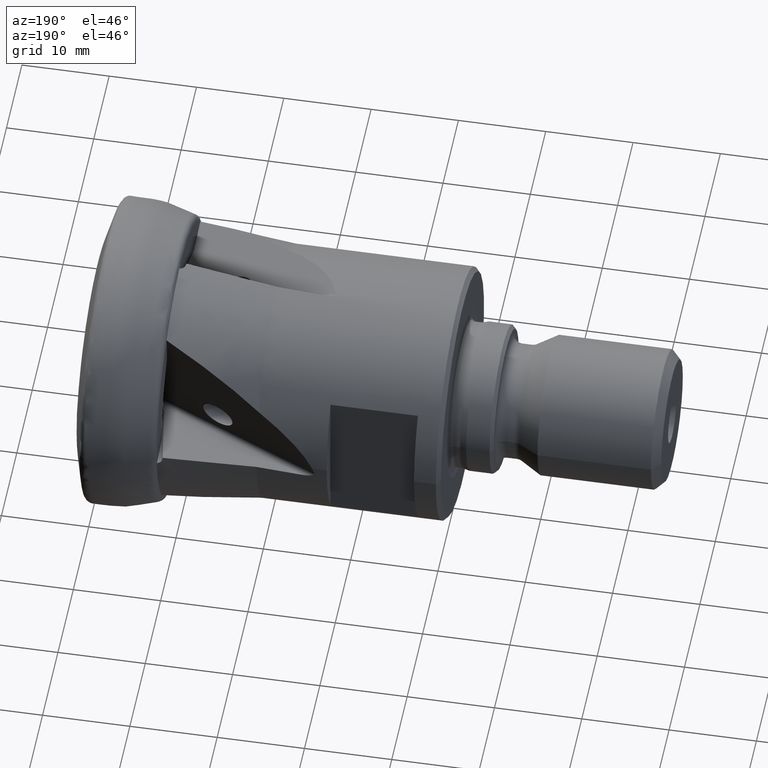
[diagram: clean part render]
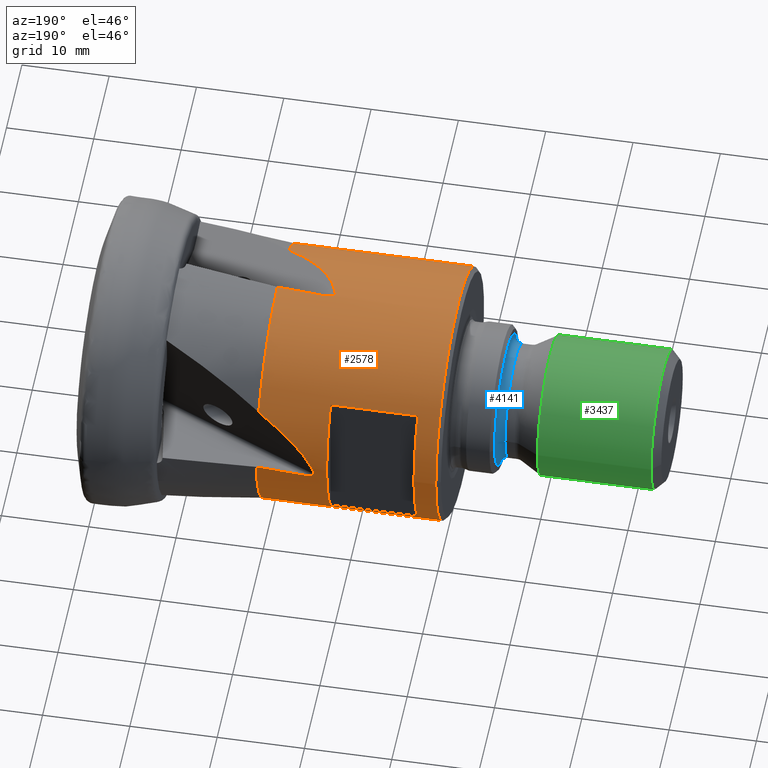
[diagram: same view with three faces highlighted in distinct colors, each labeled with its STEP entity id]
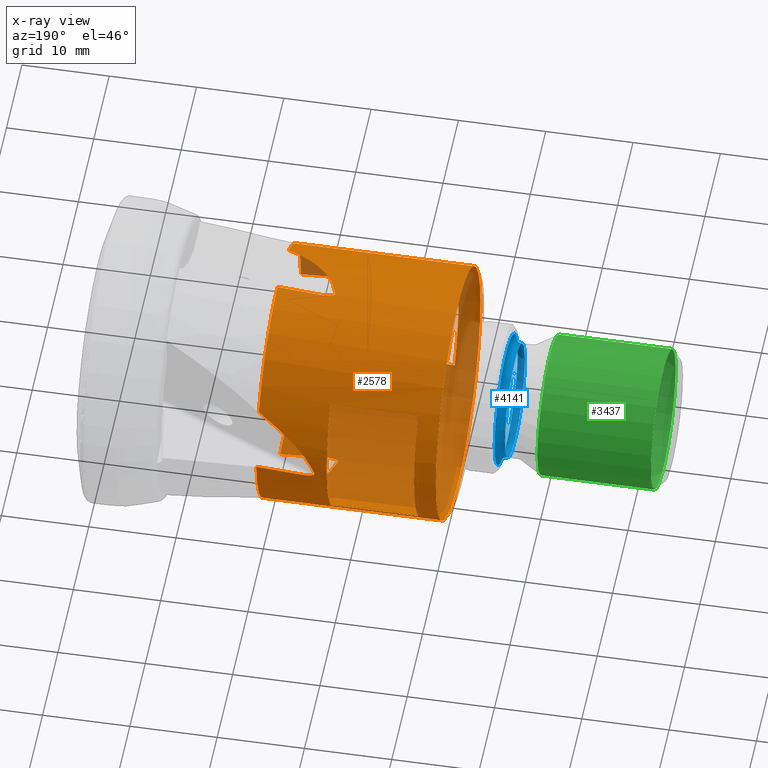
[diagram: x-ray of the same camera — body ghosted, the three highlighted faces saturated]
A machine part, auxiliary view with three faces highlighted in distinct colors.
The next image is the same camera in x-ray (body ghosted, the three faces saturated) — at least one of them is partly hidden behind the body in this view.
Their STEP definitions:

[orange] entity #2578 — the highlighted cylindrical surface (bore or boss wall) has radius 14.5 mm, axis along (1, 0, -0).
#6 = CARTESIAN_POINT ( 'NONE',  ( -21.72107227550517200, 14.46614324319610400, -0.9976155492181845200 ) ) ;
#14 = CARTESIAN_POINT ( 'NONE',  ( -20.00000000000000000, 14.47343786294145400, -0.8772664518677688600 ) ) ;
#40 = CARTESIAN_POINT ( 'NONE',  ( -25.44057468542925400, 14.44536468410429500, -1.257708494760338700 ) ) ;
#73 = CARTESIAN_POINT ( 'NONE',  ( -25.15864453342187800, 1.237994018039552300, 14.44705405303442100 ) ) ;
#77 = EDGE_CURVE ( 'NONE', #5380, #2961, #1214, .T. ) ;
#82 = CARTESIAN_POINT ( 'NONE',  ( -25.72042216559400900, 14.44624959042820900, -1.248454732640538400 ) ) ;
#152 = CARTESIAN_POINT ( 'NONE',  ( -25.15864453342188200, 14.44705405303440700, -1.237994018039706700 ) ) ;
#161 = VERTEX_POINT ( 'NONE', #5431 ) ;
#164 = CARTESIAN_POINT ( 'NONE',  ( -26.64211981763012800, -0.7876635784352925600, -14.47863267572594600 ) ) ;
#167 = CARTESIAN_POINT ( 'NONE',  ( -20.00000000000000000, 12.97221407561951300, 6.478554003502551100 ) ) ;
#179 = CARTESIAN_POINT ( 'NONE',  ( -26.13554187559321600, 14.45275731454725200, -1.169828029626882600 ) ) ;
#182 = AXIS2_PLACEMENT_3D ( 'NONE', #519, #4817, #4469 ) ;
#263 = CARTESIAN_POINT ( 'NONE',  ( -38.04999999999999000, 11.99999999999999500, 8.139410298049853100 ) ) ;
#269 = ORIENTED_EDGE ( 'NONE', *, *, #790, .T. ) ;
#272 = CARTESIAN_POINT ( 'NONE',  ( -25.15864453342188200, 14.44705405303440700, -1.237994018039706700 ) ) ;
#302 = ORIENTED_EDGE ( 'NONE', *, *, #4893, .F. ) ;
#331 = CARTESIAN_POINT ( 'NONE',  ( -28.04999999999999000, 11.99999999999999800, -8.139410298049838800 ) ) ;
#357 = CYLINDRICAL_SURFACE ( 'NONE', #4299, 14.50000000000000000 ) ;
#384 = CARTESIAN_POINT ( 'NONE',  ( -25.15864453342187400, -14.44705405303441900, 1.237994018039605800 ) ) ;
#387 =( BOUNDED_CURVE ( )  B_SPLINE_CURVE ( 3, ( #1149, #3770, #3801, #3696 ),
 .UNSPECIFIED., .F., .T. ) 
 B_SPLINE_CURVE_WITH_KNOTS ( ( 4, 4 ),
 ( 3.249855182283115900, 3.764978152329276500 ),
 .UNSPECIFIED. ) 
 CURVE ( )  GEOMETRIC_REPRESENTATION_ITEM ( )  RATIONAL_B_SPLINE_CURVE ( ( 1.000000000000000000, 0.9780093326944202500, 0.9780093326944202500, 1.000000000000000000 ) ) 
 REPRESENTATION_ITEM ( '' )  );
#397 = CARTESIAN_POINT ( 'NONE',  ( -26.27381010138614700, 14.45578271869804100, -1.133241217150249700 ) ) ;
#401 = CARTESIAN_POINT ( 'NONE',  ( -19.99999999999999600, -2.449293598294702600E-015, 0.0000000000000000000 ) ) ;
#435 = CARTESIAN_POINT ( 'NONE',  ( -26.46408068741793700, 14.46269285974371500, -1.039945989622723000 ) ) ;
#444 = DIRECTION ( 'NONE',  ( -1.000000000000000000, -1.224646799147351500E-016, 0.0000000000000000000 ) ) ;
#464 = CARTESIAN_POINT ( 'NONE',  ( -19.99999999999999600, -0.8772664518676196500, -14.47343786294146600 ) ) ;
#471 = EDGE_CURVE ( 'NONE', #657, #5033, #775, .T. ) ;
#470 = CARTESIAN_POINT ( 'NONE',  ( -26.52599383262208800, 14.46542416657723100, -1.002150513273226000 ) ) ;
#474 = B_SPLINE_CURVE_WITH_KNOTS ( 'NONE', 3,
 ( #3706, #3974, #3619, #3597, #3578, #3490, #3239, #3194, #3152, #615, #668, #73 ),
 .UNSPECIFIED., .F., .F.,
 ( 4, 2, 2, 2, 2, 4 ),
 ( 7.589415207398531000E-019, 0.0001070338114284563700, 0.0002140676228569119800, 0.0004281352457138229900, 0.0008562704914276544400, 0.001712540982855317300 ),
 .UNSPECIFIED. ) ;
#476 = ORIENTED_EDGE ( 'NONE', *, *, #2336, .T. ) ;
#492 = EDGE_CURVE ( 'NONE', #549, #4774, #5114, .T. ) ;
#496 = CARTESIAN_POINT ( 'NONE',  ( -26.63265429186544600, -14.48044465662392000, 0.7528097677711931300 ) ) ;
#519 = CARTESIAN_POINT ( 'NONE',  ( -19.99999999999999600, -2.449293598294702600E-015, 0.0000000000000000000 ) ) ;
#522 = CARTESIAN_POINT ( 'NONE',  ( -26.13554187559321200, -1.169828029626734900, -14.45275731454727400 ) ) ;
#525 = CARTESIAN_POINT ( 'NONE',  ( -26.63265429186544600, -14.48044465662392000, 0.7528097677711931300 ) ) ;
#528 = CARTESIAN_POINT ( 'NONE',  ( -26.59866834802014400, 14.47062259926868500, -0.9229204094058299800 ) ) ;
#540 = VERTEX_POINT ( 'NONE', #496 ) ;
#544 = CARTESIAN_POINT ( 'NONE',  ( -26.59866834802014400, -14.47062259926870100, 0.9229204094057333900 ) ) ;
#548 = EDGE_CURVE ( 'NONE', #3715, #705, #3767, .T. ) ;
#549 = VERTEX_POINT ( 'NONE', #4199 ) ;
#566 = CARTESIAN_POINT ( 'NONE',  ( -26.61896739219593400, 14.47254466967634900, -0.8925292235482750200 ) ) ;
#586 = CARTESIAN_POINT ( 'NONE',  ( -28.04999999999999000, -3.435134271608319600E-015, 0.0000000000000000000 ) ) ;
#603 = CARTESIAN_POINT ( 'NONE',  ( -26.64123357561798100, 14.47657388204483400, -0.8246006720601546400 ) ) ;
#615 = CARTESIAN_POINT ( 'NONE',  ( -25.72042216559401600, 1.248454732640384300, 14.44624959042823200 ) ) ;
#617 = AXIS2_PLACEMENT_3D ( 'NONE', #3991, #2445, #2941 ) ;
#631 = FACE_BOUND ( 'NONE', #1065, .T. ) ;
#657 = VERTEX_POINT ( 'NONE', #4397 ) ;
#668 = CARTESIAN_POINT ( 'NONE',  ( -25.44057468542925800, 1.257708494760186200, 14.44536468410431400 ) ) ;
#670 = CIRCLE ( 'NONE', #1949, 14.50000000000000000 ) ;
#689 = CARTESIAN_POINT ( 'NONE',  ( -25.15864453342187400, -14.44705405303441900, 1.237994018039605800 ) ) ;
#705 = VERTEX_POINT ( 'NONE', #2226 ) ;
#722 = DIRECTION ( 'NONE',  ( 0.0000000000000000000, 1.000000000000000000, 0.0000000000000000000 ) ) ;
#725 = ORIENTED_EDGE ( 'NONE', *, *, #2414, .F. ) ;
#728 = DIRECTION ( 'NONE',  ( 1.000000000000000000, 1.224646799147351500E-016, -0.0000000000000000000 ) ) ;
#738 = CARTESIAN_POINT ( 'NONE',  ( -40.54999999999999700, -4.965942770542509800E-015, 0.0000000000000000000 ) ) ;
#739 = CARTESIAN_POINT ( 'NONE',  ( -26.64211981763012100, 14.47863267572593800, -0.7876635784354403300 ) ) ;
#775 = CIRCLE ( 'NONE', #2878, 14.50000000000000000 ) ;
#785 = CARTESIAN_POINT ( 'NONE',  ( -23.68923051496132700, 14.09711010586117100, 4.226139018735862500 ) ) ;
#786 = VERTEX_POINT ( 'NONE', #167 ) ;
#790 = EDGE_CURVE ( 'NONE', #3497, #3497, #1843, .T. ) ;
#800 = CARTESIAN_POINT ( 'NONE',  ( -25.94982731096954600, 1.761485042701039600, -14.61115788658775500 ) ) ;
#804 = VERTEX_POINT ( 'NONE', #331 ) ;
#821 = EDGE_CURVE ( 'NONE', #4623, #3715, #2864, .T. ) ;
#838 = CARTESIAN_POINT ( 'NONE',  ( -26.63265429186544600, 14.48044465662391100, -0.7528097677712954900 ) ) ;
#858 = CARTESIAN_POINT ( 'NONE',  ( -26.61896739219593400, -14.47254466967635300, 0.8925292235481771000 ) ) ;
#865 = DIRECTION ( 'NONE',  ( 1.000000000000000000, 1.224646799147351500E-016, -0.0000000000000000000 ) ) ;
#871 = CARTESIAN_POINT ( 'NONE',  ( -26.61896739219593000, -0.8925292235481266900, -14.47254466967635400 ) ) ;
#878 = VECTOR ( 'NONE', #5449, 1000.000000000000000 ) ;
#885 = VERTEX_POINT ( 'NONE', #4360 ) ;
#890 = DIRECTION ( 'NONE',  ( -2.392722035830079000E-016, 1.000000000000000000, 0.0000000000000000000 ) ) ;
#927 = VERTEX_POINT ( 'NONE', #4276 ) ;
#1013 = VECTOR ( 'NONE', #444, 1000.000000000000000 ) ;
#1043 = CARTESIAN_POINT ( 'NONE',  ( -19.99999999999999600, 6.478554003502683400, -12.97221407561944800 ) ) ;
#1065 = EDGE_LOOP ( 'NONE', ( #4458, #725, #5161, #1744 ) ) ;
#1119 = EDGE_LOOP ( 'NONE', ( #5394, #3859, #2646, #2820 ) ) ;
#1129 = EDGE_CURVE ( 'NONE', #161, #549, #387, .T. ) ;
#1149 = CARTESIAN_POINT ( 'NONE',  ( -26.63265429186544600, 0.7528097677711408400, 14.48044465662392200 ) ) ;
#1164 = CARTESIAN_POINT ( 'NONE',  ( -4.163336342344339400E-015, 12.00000000000000900, -8.139410298049838800 ) ) ;
#1172 = CARTESIAN_POINT ( 'NONE',  ( -26.63265429186544600, -14.48044465662392000, 0.7528097677711931300 ) ) ;
#1204 = VECTOR ( 'NONE', #5496, 1000.000000000000000 ) ;
#1214 =( BOUNDED_CURVE ( )  B_SPLINE_CURVE ( 3, ( #14, #6, #1521, #152 ),
 .UNSPECIFIED., .F., .T. ) 
 B_SPLINE_CURVE_WITH_KNOTS ( ( 4, 4 ),
 ( 1.631334431933151500, 1.656279295382393000 ),
 .UNSPECIFIED. ) 
 CURVE ( )  GEOMETRIC_REPRESENTATION_ITEM ( )  RATIONAL_B_SPLINE_CURVE ( ( 1.000000000000000000, 0.9999481468211600700, 0.9999481468211600700, 1.000000000000000000 ) ) 
 REPRESENTATION_ITEM ( '' )  );
#1217 = DIRECTION ( 'NONE',  ( 1.000000000000000000, -0.0000000000000000000, -0.0000000000000000000 ) ) ;
#1260 = CARTESIAN_POINT ( 'NONE',  ( -26.64123357561797400, -14.47657388204485000, 0.8246006720600549400 ) ) ;
#1289 = AXIS2_PLACEMENT_3D ( 'NONE', #2922, #1217, #1603 ) ;
#1319 = CARTESIAN_POINT ( 'NONE',  ( -20.00000000000000000, 12.97221407561951300, 6.478554003502551100 ) ) ;
#1321 = CARTESIAN_POINT ( 'NONE',  ( -21.72107227550516800, -14.46614324319612000, 0.9976155492180833800 ) ) ;
#1325 = ORIENTED_EDGE ( 'NONE', *, *, #2707, .F. ) ;
#1384 = CARTESIAN_POINT ( 'NONE',  ( -25.72042216559401200, -14.44624959042823600, 1.248454732640436300 ) ) ;
#1521 = CARTESIAN_POINT ( 'NONE',  ( -23.44070962197528400, 14.45734818384197100, -1.117864306555813400 ) ) ;
#1524 =( BOUNDED_CURVE ( )  B_SPLINE_CURVE ( 3, ( #4732, #800, #4213, #1043 ),
 .UNSPECIFIED., .F., .T. ) 
 B_SPLINE_CURVE_WITH_KNOTS ( ( 4, 4 ),
 ( 3.249855182283115900, 3.764978152329276900 ),
 .UNSPECIFIED. ) 
 CURVE ( )  GEOMETRIC_REPRESENTATION_ITEM ( )  RATIONAL_B_SPLINE_CURVE ( ( 1.000000000000000000, 0.9780093326944202500, 0.9780093326944202500, 1.000000000000000000 ) ) 
 REPRESENTATION_ITEM ( '' )  );
#1553 = VERTEX_POINT ( 'NONE', #1617 ) ;
#1596 = CARTESIAN_POINT ( 'NONE',  ( -26.27381010138613600, -1.133241217150101600, -14.45578271869805300 ) ) ;
#1603 = DIRECTION ( 'NONE',  ( 0.0000000000000000000, 3.552713678800500900E-015, 1.000000000000000000 ) ) ;
#1617 = CARTESIAN_POINT ( 'NONE',  ( -38.04999999999999000, 11.99999999999999500, -8.139410298049853100 ) ) ;
#1628 = CARTESIAN_POINT ( 'NONE',  ( -28.04999999999998600, -3.435134271608319200E-015, 0.0000000000000000000 ) ) ;
#1633 = FACE_OUTER_BOUND ( 'NONE', #2141, .T. ) ;
#1636 = DIRECTION ( 'NONE',  ( -1.000000000000000000, 0.0000000000000000000, -0.0000000000000000000 ) ) ;
#1643 = CARTESIAN_POINT ( 'NONE',  ( 0.0000000000000000000, 0.0000000000000000000, 0.0000000000000000000 ) ) ;
#1646 = ORIENTED_EDGE ( 'NONE', *, *, #3370, .F. ) ;
#1650 = ORIENTED_EDGE ( 'NONE', *, *, #3607, .F. ) ;
#1681 = VERTEX_POINT ( 'NONE', #2261 ) ;
#1744 = ORIENTED_EDGE ( 'NONE', *, *, #5502, .F. ) ;
#1754 = DIRECTION ( 'NONE',  ( 1.000000000000000000, 1.224646799147351500E-016, -0.0000000000000000000 ) ) ;
#1775 = FACE_BOUND ( 'NONE', #1119, .T. ) ;
#1843 = CIRCLE ( 'NONE', #3028, 14.50000000000000000 ) ;
#1855 = DIRECTION ( 'NONE',  ( 0.0000000000000000000, 0.0000000000000000000, -1.000000000000000000 ) ) ;
#1871 = ORIENTED_EDGE ( 'NONE', *, *, #821, .F. ) ;
#1949 = AXIS2_PLACEMENT_3D ( 'NONE', #401, #1754, #2183 ) ;
#1952 = CARTESIAN_POINT ( 'NONE',  ( -26.63265429186545000, -0.7528097677711473900, -14.48044465662392400 ) ) ;
#1964 = CIRCLE ( 'NONE', #1289, 14.50000000000000000 ) ;
#2033 = VERTEX_POINT ( 'NONE', #4832 ) ;
#2059 = DIRECTION ( 'NONE',  ( 1.000000000000000000, 1.387778780781447100E-015, 0.0000000000000000000 ) ) ;
#2097 = CARTESIAN_POINT ( 'NONE',  ( -25.15864453342187800, 1.237994018039552300, 14.44705405303442100 ) ) ;
#2118 = CIRCLE ( 'NONE', #3965, 14.50000000000000000 ) ;
#2141 = EDGE_LOOP ( 'NONE', ( #302, #2814, #5035, #1646, #1325, #5086, #2404, #1871, #3620, #476, #1650, #5203, #2756, #5179, #2927, #4999 ) ) ;
#2152 = VERTEX_POINT ( 'NONE', #3514 ) ;
#2170 = CARTESIAN_POINT ( 'NONE',  ( -26.27381010138614000, -14.45578271869805700, 1.133241217150150200 ) ) ;
#2183 = DIRECTION ( 'NONE',  ( -2.392722035830079000E-016, 1.000000000000000000, 0.0000000000000000000 ) ) ;
#2226 = CARTESIAN_POINT ( 'NONE',  ( -25.15864453342187800, -1.237994018039558300, -14.44705405303442100 ) ) ;
#2234 =( BOUNDED_CURVE ( )  B_SPLINE_CURVE ( 3, ( #5308, #5430, #785, #1319 ),
 .UNSPECIFIED., .F., .T. ) 
 B_SPLINE_CURVE_WITH_KNOTS ( ( 4, 4 ),
 ( 3.249855182283115900, 3.764978152329276500 ),
 .UNSPECIFIED. ) 
 CURVE ( )  GEOMETRIC_REPRESENTATION_ITEM ( )  RATIONAL_B_SPLINE_CURVE ( ( 1.000000000000000000, 0.9780093326944202500, 0.9780093326944202500, 1.000000000000000000 ) ) 
 REPRESENTATION_ITEM ( '' )  );
#2261 = CARTESIAN_POINT ( 'NONE',  ( -38.04999999999999000, -12.00000000000000500, -8.139410298049844200 ) ) ;
#2276 = B_SPLINE_CURVE_WITH_KNOTS ( 'NONE', 3,
 ( #525, #4778, #1260, #858, #544, #4818, #5177, #2170, #5196, #1384, #2718, #384 ),
 .UNSPECIFIED., .F., .F.,
 ( 4, 2, 2, 2, 2, 4 ),
 ( 2.059984127722458400E-018, 0.0001070338114284623600, 0.0002140676228569226600, 0.0004281352457138426700, 0.0008562704914276732000, 0.001712540982855334300 ),
 .UNSPECIFIED. ) ;
#2336 = EDGE_CURVE ( 'NONE', #540, #2152, #2276, .T. ) ;
#2369 = CARTESIAN_POINT ( 'NONE',  ( -19.99999999999999600, -2.449293598294702600E-015, 0.0000000000000000000 ) ) ;
#2404 = ORIENTED_EDGE ( 'NONE', *, *, #548, .F. ) ;
#2414 = EDGE_CURVE ( 'NONE', #5197, #3391, #3234, .T. ) ;
#2445 = DIRECTION ( 'NONE',  ( 1.000000000000000000, 1.224646799147351500E-016, -0.0000000000000000000 ) ) ;
#2534 = CARTESIAN_POINT ( 'NONE',  ( -25.15864453342187800, -1.237994018039558300, -14.44705405303442100 ) ) ;
#2578 = ADVANCED_FACE ( 'NONE', ( #1633, #1775, #631, #4294 ), #357, .T. ) ;
#2582 = CARTESIAN_POINT ( 'NONE',  ( -40.54999999999999700, 14.49999999999999500, 0.0000000000000000000 ) ) ;
#2646 = ORIENTED_EDGE ( 'NONE', *, *, #471, .F. ) ;
#2707 = EDGE_CURVE ( 'NONE', #4115, #4011, #1524, .T. ) ;
#2715 = CARTESIAN_POINT ( 'NONE',  ( -20.00000000000000000, -12.97221407561947300, -6.478554003502642500 ) ) ;
#2718 = CARTESIAN_POINT ( 'NONE',  ( -25.44057468542925100, -14.44536468410431100, 1.257708494760241900 ) ) ;
#2739 = DIRECTION ( 'NONE',  ( 0.0000000000000000000, 0.0000000000000000000, -1.000000000000000000 ) ) ;
#2756 = ORIENTED_EDGE ( 'NONE', *, *, #1129, .F. ) ;
#2763 = VECTOR ( 'NONE', #5442, 1000.000000000000000 ) ;
#2814 = ORIENTED_EDGE ( 'NONE', *, *, #4426, .T. ) ;
#2820 = ORIENTED_EDGE ( 'NONE', *, *, #4026, .F. ) ;
#2825 = CIRCLE ( 'NONE', #182, 14.50000000000000000 ) ;
#2843 =( BOUNDED_CURVE ( )  B_SPLINE_CURVE ( 3, ( #5497, #4581, #4030, #3914 ),
 .UNSPECIFIED., .F., .T. ) 
 B_SPLINE_CURVE_WITH_KNOTS ( ( 4, 4 ),
 ( 1.631334431933151500, 1.656279295382393000 ),
 .UNSPECIFIED. ) 
 CURVE ( )  GEOMETRIC_REPRESENTATION_ITEM ( )  RATIONAL_B_SPLINE_CURVE ( ( 1.000000000000000000, 0.9999481468211600700, 0.9999481468211600700, 1.000000000000000000 ) ) 
 REPRESENTATION_ITEM ( '' )  );
#2864 = CIRCLE ( 'NONE', #4669, 14.50000000000000000 ) ;
#2878 = AXIS2_PLACEMENT_3D ( 'NONE', #1628, #1636, #1855 ) ;
#2922 = CARTESIAN_POINT ( 'NONE',  ( -38.04999999999999000, -4.659781070755671100E-015, 0.0000000000000000000 ) ) ;
#2927 = ORIENTED_EDGE ( 'NONE', *, *, #5027, .F. ) ;
#2941 = DIRECTION ( 'NONE',  ( -2.392722035830079000E-016, 1.000000000000000000, 0.0000000000000000000 ) ) ;
#2961 = VERTEX_POINT ( 'NONE', #3166 ) ;
#2985 = EDGE_CURVE ( 'NONE', #4115, #705, #3937, .T. ) ;
#3028 = AXIS2_PLACEMENT_3D ( 'NONE', #738, #728, #722 ) ;
#3075 = CARTESIAN_POINT ( 'NONE',  ( 0.0000000000000000000, -12.00000000000000500, -8.139410298049844200 ) ) ;
#3131 = EDGE_CURVE ( 'NONE', #3391, #804, #2118, .T. ) ;
#3152 = CARTESIAN_POINT ( 'NONE',  ( -26.13554187559319800, 1.169828029626727400, 14.45275731454726500 ) ) ;
#3166 = CARTESIAN_POINT ( 'NONE',  ( -25.15864453342188200, 14.44705405303440700, -1.237994018039706700 ) ) ;
#3194 = CARTESIAN_POINT ( 'NONE',  ( -26.27381010138613600, 1.133241217150092500, 14.45578271869805500 ) ) ;
#3202 = CARTESIAN_POINT ( 'NONE',  ( -26.64123357561796700, -0.8246006720600048700, -14.47657388204485200 ) ) ;
#3210 = EDGE_CURVE ( 'NONE', #1553, #5197, #1964, .T. ) ;
#3234 = LINE ( 'NONE', #4037, #878 ) ;
#3239 = CARTESIAN_POINT ( 'NONE',  ( -26.46408068741794000, 1.039945989622565100, 14.46269285974373100 ) ) ;
#3356 = CARTESIAN_POINT ( 'NONE',  ( -19.99999999999999600, 6.478554003502683400, -12.97221407561944800 ) ) ;
#3366 = DIRECTION ( 'NONE',  ( -1.224646799147351700E-016, 1.000000000000000000, 0.0000000000000000000 ) ) ;
#3370 = EDGE_CURVE ( 'NONE', #4011, #5380, #670, .T. ) ;
#3391 = VERTEX_POINT ( 'NONE', #4671 ) ;
#3406 = EDGE_CURVE ( 'NONE', #540, #4623, #5172, .T. ) ;
#3479 = CARTESIAN_POINT ( 'NONE',  ( -19.99999999999999300, -14.47343786294146500, 0.8772664518676676100 ) ) ;
#3490 = CARTESIAN_POINT ( 'NONE',  ( -26.52599383262208100, 1.002150513273071900, 14.46542416657724700 ) ) ;
#3497 = VERTEX_POINT ( 'NONE', #2582 ) ;
#3514 = CARTESIAN_POINT ( 'NONE',  ( -25.15864453342187400, -14.44705405303441900, 1.237994018039605800 ) ) ;
#3537 = EDGE_CURVE ( 'NONE', #885, #1681, #3633, .T. ) ;
#3578 = CARTESIAN_POINT ( 'NONE',  ( -26.59866834802014100, 0.9229204094056774300, 14.47062259926869900 ) ) ;
#3581 = VERTEX_POINT ( 'NONE', #2097 ) ;
#3597 = CARTESIAN_POINT ( 'NONE',  ( -26.61896739219592300, 0.8925292235481188100, 14.47254466967635600 ) ) ;
#3607 = EDGE_CURVE ( 'NONE', #4774, #2152, #5480, .T. ) ;
#3619 = CARTESIAN_POINT ( 'NONE',  ( -26.64123357561797100, 0.8246006720599971000, 14.47657388204485000 ) ) ;
#3620 = ORIENTED_EDGE ( 'NONE', *, *, #3406, .F. ) ;
#3633 = CIRCLE ( 'NONE', #3791, 14.50000000000000000 ) ;
#3639 = CARTESIAN_POINT ( 'NONE',  ( -19.99999999999999300, -14.47343786294146500, 0.8772664518676676100 ) ) ;
#3696 = CARTESIAN_POINT ( 'NONE',  ( -20.00000000000000000, -6.478554003502689600, 12.97221407561944800 ) ) ;
#3706 = CARTESIAN_POINT ( 'NONE',  ( -26.63265429186544600, 0.7528097677711408400, 14.48044465662392200 ) ) ;
#3715 = VERTEX_POINT ( 'NONE', #464 ) ;
#3761 = DIRECTION ( 'NONE',  ( -1.000000000000000000, -0.0000000000000000000, -0.0000000000000000000 ) ) ;
#3767 =( BOUNDED_CURVE ( )  B_SPLINE_CURVE ( 3, ( #5202, #4904, #3922, #5171 ),
 .UNSPECIFIED., .F., .T. ) 
 B_SPLINE_CURVE_WITH_KNOTS ( ( 4, 4 ),
 ( 1.631334431933151500, 1.656279295382393000 ),
 .UNSPECIFIED. ) 
 CURVE ( )  GEOMETRIC_REPRESENTATION_ITEM ( )  RATIONAL_B_SPLINE_CURVE ( ( 1.000000000000000000, 0.9999481468211600700, 0.9999481468211600700, 1.000000000000000000 ) ) 
 REPRESENTATION_ITEM ( '' )  );
#3770 = CARTESIAN_POINT ( 'NONE',  ( -25.94982731096955000, -1.761485042701043300, 14.61115788658775100 ) ) ;
#3791 = AXIS2_PLACEMENT_3D ( 'NONE', #4253, #2059, #4993 ) ;
#3801 = CARTESIAN_POINT ( 'NONE',  ( -23.68923051496132700, -4.226139018736011700, 14.09711010586113000 ) ) ;
#3859 = ORIENTED_EDGE ( 'NONE', *, *, #5408, .F. ) ;
#3895 = CARTESIAN_POINT ( 'NONE',  ( -20.00000000000000000, -12.97221407561947300, -6.478554003502642500 ) ) ;
#3914 = CARTESIAN_POINT ( 'NONE',  ( -25.15864453342187800, 1.237994018039552300, 14.44705405303442100 ) ) ;
#3915 = CARTESIAN_POINT ( 'NONE',  ( -20.00000000000000000, 14.47343786294145400, -0.8772664518677688600 ) ) ;
#3922 = CARTESIAN_POINT ( 'NONE',  ( -23.44070962197528000, -1.117864306555664600, -14.45734818384198700 ) ) ;
#3937 = B_SPLINE_CURVE_WITH_KNOTS ( 'NONE', 3,
 ( #5607, #164, #3202, #871, #4972, #4880, #4769, #1596, #522, #4601, #5560, #2534 ),
 .UNSPECIFIED., .F., .F.,
 ( 4, 2, 2, 2, 2, 4 ),
 ( 8.673617379884035500E-019, 0.0001070338114284611800, 0.0002140676228569215000, 0.0004281352457138421300, 0.0008562704914276735200, 0.001712540982855336200 ),
 .UNSPECIFIED. ) ;
#3949 = LINE ( 'NONE', #3075, #2763 ) ;
#3965 = AXIS2_PLACEMENT_3D ( 'NONE', #586, #3761, #2739 ) ;
#3974 = CARTESIAN_POINT ( 'NONE',  ( -26.64211981763012500, 0.7876635784352854500, 14.47863267572595100 ) ) ;
#3991 = CARTESIAN_POINT ( 'NONE',  ( -19.99999999999999600, -2.449293598294702600E-015, 0.0000000000000000000 ) ) ;
#4011 = VERTEX_POINT ( 'NONE', #3356 ) ;
#4026 = EDGE_CURVE ( 'NONE', #1681, #657, #3949, .T. ) ;
#4030 = CARTESIAN_POINT ( 'NONE',  ( -23.44070962197528000, 1.117864306555658800, 14.45734818384198700 ) ) ;
#4037 = CARTESIAN_POINT ( 'NONE',  ( -4.163336342344339400E-015, 12.00000000000000900, 8.139410298049838800 ) ) ;
#4115 = VERTEX_POINT ( 'NONE', #1952 ) ;
#4156 = LINE ( 'NONE', #1164, #1204 ) ;
#4199 = CARTESIAN_POINT ( 'NONE',  ( -20.00000000000000000, -6.478554003502689600, 12.97221407561944800 ) ) ;
#4213 = CARTESIAN_POINT ( 'NONE',  ( -23.68923051496132000, 4.226139018736011700, -14.09711010586113200 ) ) ;
#4253 = CARTESIAN_POINT ( 'NONE',  ( -38.05000000000000400, -4.659781070755672700E-015, 0.0000000000000000000 ) ) ;
#4276 = CARTESIAN_POINT ( 'NONE',  ( -26.63265429186544600, 14.48044465662391100, -0.7528097677712954900 ) ) ;
#4294 = FACE_OUTER_BOUND ( 'NONE', #4464, .T. ) ;
#4299 = AXIS2_PLACEMENT_3D ( 'NONE', #1643, #5083, #3366 ) ;
#4305 = LINE ( 'NONE', #4802, #1013 ) ;
#4360 = CARTESIAN_POINT ( 'NONE',  ( -38.04999999999999000, -12.00000000000000500, 8.139410298049844200 ) ) ;
#4397 = CARTESIAN_POINT ( 'NONE',  ( -28.04999999999998600, -12.00000000000000500, -8.139410298049849500 ) ) ;
#4409 = B_SPLINE_CURVE_WITH_KNOTS ( 'NONE', 3,
 ( #838, #739, #603, #566, #528, #470, #435, #397, #179, #82, #40, #272 ),
 .UNSPECIFIED., .F., .F.,
 ( 4, 2, 2, 2, 2, 4 ),
 ( 1.192622389734054900E-018, 0.0001070338114284555700, 0.0002140676228569099500, 0.0004281352457138179500, 0.0008562704914276430600, 0.001712540982855293500 ),
 .UNSPECIFIED. ) ;
#4426 = EDGE_CURVE ( 'NONE', #927, #2961, #4409, .T. ) ;
#4430 = CARTESIAN_POINT ( 'NONE',  ( -28.04999999999998600, -12.00000000000000500, 8.139410298049849500 ) ) ;
#4458 = ORIENTED_EDGE ( 'NONE', *, *, #3131, .F. ) ;
#4464 = EDGE_LOOP ( 'NONE', ( #269 ) ) ;
#4469 = DIRECTION ( 'NONE',  ( -2.392722035830079000E-016, 1.000000000000000000, 0.0000000000000000000 ) ) ;
#4542 = EDGE_CURVE ( 'NONE', #786, #2033, #2825, .T. ) ;
#4581 = CARTESIAN_POINT ( 'NONE',  ( -21.72107227550516800, 0.9976155492180303100, 14.46614324319612000 ) ) ;
#4584 = CARTESIAN_POINT ( 'NONE',  ( -23.44070962197527700, -14.45734818384198700, 1.117864306555712300 ) ) ;
#4601 = CARTESIAN_POINT ( 'NONE',  ( -25.72042216559400900, -1.248454732640390500, -14.44624959042823400 ) ) ;
#4623 = VERTEX_POINT ( 'NONE', #3895 ) ;
#4669 = AXIS2_PLACEMENT_3D ( 'NONE', #2369, #865, #890 ) ;
#4671 = CARTESIAN_POINT ( 'NONE',  ( -28.04999999999999000, 11.99999999999999800, 8.139410298049840600 ) ) ;
#4729 = EDGE_CURVE ( 'NONE', #161, #3581, #474, .T. ) ;
#4732 = CARTESIAN_POINT ( 'NONE',  ( -26.63265429186545000, -0.7528097677711473900, -14.48044465662392400 ) ) ;
#4769 = CARTESIAN_POINT ( 'NONE',  ( -26.46408068741793700, -1.039945989622574900, -14.46269285974372700 ) ) ;
#4774 = VERTEX_POINT ( 'NONE', #3639 ) ;
#4778 = CARTESIAN_POINT ( 'NONE',  ( -26.64211981763011400, -14.47863267572594600, 0.7876635784353395200 ) ) ;
#4802 = CARTESIAN_POINT ( 'NONE',  ( 0.0000000000000000000, -12.00000000000000500, 8.139410298049844200 ) ) ;
#4817 = DIRECTION ( 'NONE',  ( 1.000000000000000000, 1.224646799147351500E-016, -0.0000000000000000000 ) ) ;
#4818 = CARTESIAN_POINT ( 'NONE',  ( -26.52599383262208800, -14.46542416657725200, 1.002150513273126300 ) ) ;
#4832 = CARTESIAN_POINT ( 'NONE',  ( -19.99999999999999600, 0.8772664518676147600, 14.47343786294146600 ) ) ;
#4880 = CARTESIAN_POINT ( 'NONE',  ( -26.52599383262209500, -1.002150513273080800, -14.46542416657725000 ) ) ;
#4893 = EDGE_CURVE ( 'NONE', #927, #786, #2234, .T. ) ;
#4904 = CARTESIAN_POINT ( 'NONE',  ( -21.72107227550517200, -0.9976155492180357500, -14.46614324319612000 ) ) ;
#4972 = CARTESIAN_POINT ( 'NONE',  ( -26.59866834802013700, -0.9229204094056860900, -14.47062259926869700 ) ) ;
#4993 = DIRECTION ( 'NONE',  ( 1.435633221498047300E-015, -1.000000000000000000, 0.0000000000000000000 ) ) ;
#4999 = ORIENTED_EDGE ( 'NONE', *, *, #4542, .F. ) ;
#5027 = EDGE_CURVE ( 'NONE', #2033, #3581, #2843, .T. ) ;
#5033 = VERTEX_POINT ( 'NONE', #4430 ) ;
#5035 = ORIENTED_EDGE ( 'NONE', *, *, #77, .F. ) ;
#5083 = DIRECTION ( 'NONE',  ( 1.000000000000000000, 1.224646799147351500E-016, -0.0000000000000000000 ) ) ;
#5086 = ORIENTED_EDGE ( 'NONE', *, *, #2985, .T. ) ;
#5114 = CIRCLE ( 'NONE', #617, 14.50000000000000000 ) ;
#5161 = ORIENTED_EDGE ( 'NONE', *, *, #3210, .F. ) ;
#5171 = CARTESIAN_POINT ( 'NONE',  ( -25.15864453342187800, -1.237994018039558300, -14.44705405303442100 ) ) ;
#5172 =( BOUNDED_CURVE ( )  B_SPLINE_CURVE ( 3, ( #1172, #5457, #5526, #2715 ),
 .UNSPECIFIED., .F., .T. ) 
 B_SPLINE_CURVE_WITH_KNOTS ( ( 4, 4 ),
 ( 3.249855182283115900, 3.764978152329276500 ),
 .UNSPECIFIED. ) 
 CURVE ( )  GEOMETRIC_REPRESENTATION_ITEM ( )  RATIONAL_B_SPLINE_CURVE ( ( 1.000000000000000000, 0.9780093326944202500, 0.9780093326944202500, 1.000000000000000000 ) ) 
 REPRESENTATION_ITEM ( '' )  );
#5177 = CARTESIAN_POINT ( 'NONE',  ( -26.46408068741794400, -14.46269285974373100, 1.039945989622624200 ) ) ;
#5179 = ORIENTED_EDGE ( 'NONE', *, *, #4729, .T. ) ;
#5196 = CARTESIAN_POINT ( 'NONE',  ( -26.13554187559319800, -14.45275731454726800, 1.169828029626783600 ) ) ;
#5197 = VERTEX_POINT ( 'NONE', #263 ) ;
#5202 = CARTESIAN_POINT ( 'NONE',  ( -19.99999999999999600, -0.8772664518676196500, -14.47343786294146600 ) ) ;
#5203 = ORIENTED_EDGE ( 'NONE', *, *, #492, .F. ) ;
#5308 = CARTESIAN_POINT ( 'NONE',  ( -26.63265429186544600, 14.48044465662391100, -0.7528097677712954900 ) ) ;
#5380 = VERTEX_POINT ( 'NONE', #3915 ) ;
#5394 = ORIENTED_EDGE ( 'NONE', *, *, #3537, .F. ) ;
#5408 = EDGE_CURVE ( 'NONE', #5033, #885, #4305, .T. ) ;
#5430 = CARTESIAN_POINT ( 'NONE',  ( -25.94982731096954300, 14.61115788658776900, 1.761485042700887900 ) ) ;
#5431 = CARTESIAN_POINT ( 'NONE',  ( -26.63265429186544600, 0.7528097677711408400, 14.48044465662392200 ) ) ;
#5442 = DIRECTION ( 'NONE',  ( 1.000000000000000000, 1.224646799147351500E-016, -0.0000000000000000000 ) ) ;
#5449 = DIRECTION ( 'NONE',  ( 1.000000000000000000, 1.224646799147351500E-016, -0.0000000000000000000 ) ) ;
#5457 = CARTESIAN_POINT ( 'NONE',  ( -25.94982731096954300, -14.61115788658776000, -1.761485042700991800 ) ) ;
#5480 =( BOUNDED_CURVE ( )  B_SPLINE_CURVE ( 3, ( #3479, #1321, #4584, #689 ),
 .UNSPECIFIED., .F., .T. ) 
 B_SPLINE_CURVE_WITH_KNOTS ( ( 4, 4 ),
 ( 1.631334431933151500, 1.656279295382393000 ),
 .UNSPECIFIED. ) 
 CURVE ( )  GEOMETRIC_REPRESENTATION_ITEM ( )  RATIONAL_B_SPLINE_CURVE ( ( 1.000000000000000000, 0.9999481468211600700, 0.9999481468211600700, 1.000000000000000000 ) ) 
 REPRESENTATION_ITEM ( '' )  );
#5496 = DIRECTION ( 'NONE',  ( -1.000000000000000000, -1.224646799147351500E-016, 0.0000000000000000000 ) ) ;
#5497 = CARTESIAN_POINT ( 'NONE',  ( -19.99999999999999600, 0.8772664518676147600, 14.47343786294146600 ) ) ;
#5502 = EDGE_CURVE ( 'NONE', #804, #1553, #4156, .T. ) ;
#5526 = CARTESIAN_POINT ( 'NONE',  ( -23.68923051496132700, -14.09711010586115000, -4.226139018735962900 ) ) ;
#5560 = CARTESIAN_POINT ( 'NONE',  ( -25.44057468542925100, -1.257708494760191300, -14.44536468410431100 ) ) ;
#5607 = CARTESIAN_POINT ( 'NONE',  ( -26.63265429186545000, -0.7528097677711473900, -14.48044465662392400 ) ) ;

[blue] entity #4141 — the highlighted toroidal blend (fillet) surface has major radius 7.5 mm and minor (blend) radius 1 mm.
#94 = VERTEX_POINT ( 'NONE', #3893 ) ;
#148 = FACE_OUTER_BOUND ( 'NONE', #465, .T. ) ;
#453 = ORIENTED_EDGE ( 'NONE', *, *, #687, .F. ) ;
#465 = EDGE_LOOP ( 'NONE', ( #453 ) ) ;
#487 = CIRCLE ( 'NONE', #3206, 7.500000000000007100 ) ;
#510 = CIRCLE ( 'NONE', #3864, 6.500000000000000000 ) ;
#687 = EDGE_CURVE ( 'NONE', #94, #94, #487, .T. ) ;
#1290 = TOROIDAL_SURFACE ( 'NONE', #2617, 7.500000000000000000, 1.000000000000000400 ) ;
#1529 = DIRECTION ( 'NONE',  ( 1.000000000000000000, 1.224646799147351500E-016, -0.0000000000000000000 ) ) ;
#1534 = DIRECTION ( 'NONE',  ( 0.0000000000000000000, 1.000000000000000000, 0.0000000000000000000 ) ) ;
#1718 = CARTESIAN_POINT ( 'NONE',  ( -47.05000000000000400, 6.499999999999993800, 0.0000000000000000000 ) ) ;
#1891 = DIRECTION ( 'NONE',  ( -1.224646799147351500E-016, 1.000000000000000000, 0.0000000000000000000 ) ) ;
#2342 = CARTESIAN_POINT ( 'NONE',  ( -47.04999999999999700, -6.071532165918824800E-015, 0.0000000000000000000 ) ) ;
#2347 = EDGE_LOOP ( 'NONE', ( #5274 ) ) ;
#2617 = AXIS2_PLACEMENT_3D ( 'NONE', #2342, #5357, #1891 ) ;
#2914 = VERTEX_POINT ( 'NONE', #1718 ) ;
#3206 = AXIS2_PLACEMENT_3D ( 'NONE', #5049, #4648, #1534 ) ;
#3676 = FACE_OUTER_BOUND ( 'NONE', #2347, .T. ) ;
#3864 = AXIS2_PLACEMENT_3D ( 'NONE', #4643, #1529, #4847 ) ;
#3893 = CARTESIAN_POINT ( 'NONE',  ( -46.04999999999999700, 7.500000000000000900, 0.0000000000000000000 ) ) ;
#4141 = ADVANCED_FACE ( 'NONE', ( #3676, #148 ), #1290, .F. ) ;
#4561 = EDGE_CURVE ( 'NONE', #2914, #2914, #510, .T. ) ;
#4643 = CARTESIAN_POINT ( 'NONE',  ( -47.05000000000000400, -5.761963189988289000E-015, 0.0000000000000000000 ) ) ;
#4648 = DIRECTION ( 'NONE',  ( 1.000000000000000000, 1.224646799147351500E-016, -0.0000000000000000000 ) ) ;
#4847 = DIRECTION ( 'NONE',  ( 0.0000000000000000000, 1.000000000000000000, 0.0000000000000000000 ) ) ;
#5049 = CARTESIAN_POINT ( 'NONE',  ( -46.04999999999999700, -5.639498510073552300E-015, 0.0000000000000000000 ) ) ;
#5274 = ORIENTED_EDGE ( 'NONE', *, *, #4561, .T. ) ;
#5357 = DIRECTION ( 'NONE',  ( 1.000000000000000000, 1.224646799147351500E-016, -0.0000000000000000000 ) ) ;

[green] entity #3437 — the highlighted cylindrical surface (bore or boss wall) has radius 8 mm, axis along (1, 0, -0).
#117 = AXIS2_PLACEMENT_3D ( 'NONE', #797, #3788, #2064 ) ;
#242 = DIRECTION ( 'NONE',  ( -1.224646799147351500E-016, 1.000000000000000000, 0.0000000000000000000 ) ) ;
#262 = DIRECTION ( 'NONE',  ( 0.0000000000000000000, 1.000000000000000000, 0.0000000000000000000 ) ) ;
#531 = CARTESIAN_POINT ( 'NONE',  ( -51.04999999999999700, -6.251821909647229600E-015, 0.0000000000000000000 ) ) ;
#683 = EDGE_CURVE ( 'NONE', #1244, #1244, #3860, .T. ) ;
#756 = AXIS2_PLACEMENT_3D ( 'NONE', #531, #3143, #262 ) ;
#797 = CARTESIAN_POINT ( 'NONE',  ( -64.04999999999999700, -7.843862748538786600E-015, 0.0000000000000000000 ) ) ;
#1096 = CIRCLE ( 'NONE', #117, 8.000000000000001800 ) ;
#1216 = CARTESIAN_POINT ( 'NONE',  ( -51.04999999999999700, 7.999999999999991100, 0.0000000000000000000 ) ) ;
#1244 = VERTEX_POINT ( 'NONE', #1216 ) ;
#1382 = FACE_OUTER_BOUND ( 'NONE', #1482, .T. ) ;
#1482 = EDGE_LOOP ( 'NONE', ( #5156 ) ) ;
#1940 = CARTESIAN_POINT ( 'NONE',  ( 0.0000000000000000000, 0.0000000000000000000, 0.0000000000000000000 ) ) ;
#2064 = DIRECTION ( 'NONE',  ( 0.0000000000000000000, 1.000000000000000000, 0.0000000000000000000 ) ) ;
#2521 = AXIS2_PLACEMENT_3D ( 'NONE', #1940, #5428, #242 ) ;
#2535 = ORIENTED_EDGE ( 'NONE', *, *, #3684, .T. ) ;
#2601 = CARTESIAN_POINT ( 'NONE',  ( -64.04999999999999700, 7.999999999999992900, 0.0000000000000000000 ) ) ;
#3143 = DIRECTION ( 'NONE',  ( 1.000000000000000000, 1.224646799147351500E-016, -0.0000000000000000000 ) ) ;
#3437 = ADVANCED_FACE ( 'NONE', ( #3901, #1382 ), #4781, .T. ) ;
#3684 = EDGE_CURVE ( 'NONE', #5316, #5316, #1096, .T. ) ;
#3779 = EDGE_LOOP ( 'NONE', ( #2535 ) ) ;
#3788 = DIRECTION ( 'NONE',  ( 1.000000000000000000, 1.224646799147351500E-016, -0.0000000000000000000 ) ) ;
#3860 = CIRCLE ( 'NONE', #756, 7.999999999999998200 ) ;
#3901 = FACE_OUTER_BOUND ( 'NONE', #3779, .T. ) ;
#4781 = CYLINDRICAL_SURFACE ( 'NONE', #2521, 8.000000000000000000 ) ;
#5156 = ORIENTED_EDGE ( 'NONE', *, *, #683, .F. ) ;
#5316 = VERTEX_POINT ( 'NONE', #2601 ) ;
#5428 = DIRECTION ( 'NONE',  ( 1.000000000000000000, 1.224646799147351500E-016, -0.0000000000000000000 ) ) ;